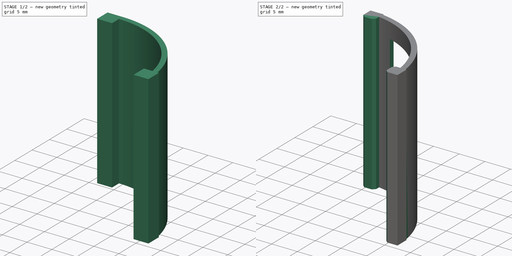
[diagram: build sequence overview — one tinted view per stage of 2, left to right]
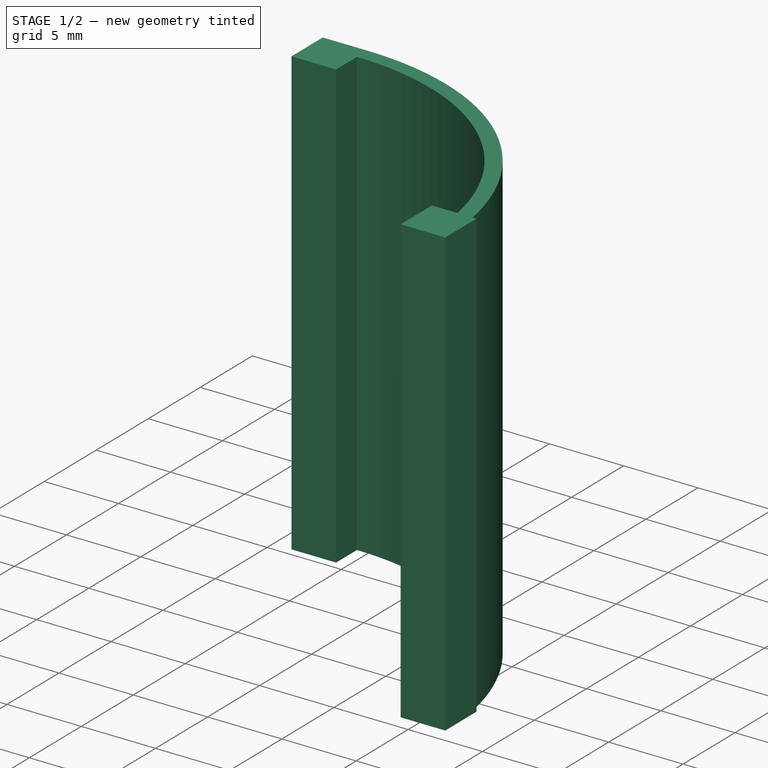
[diagram: stage 1 of 2 — iso view after this stage's code; geometry added in this stage tinted green]
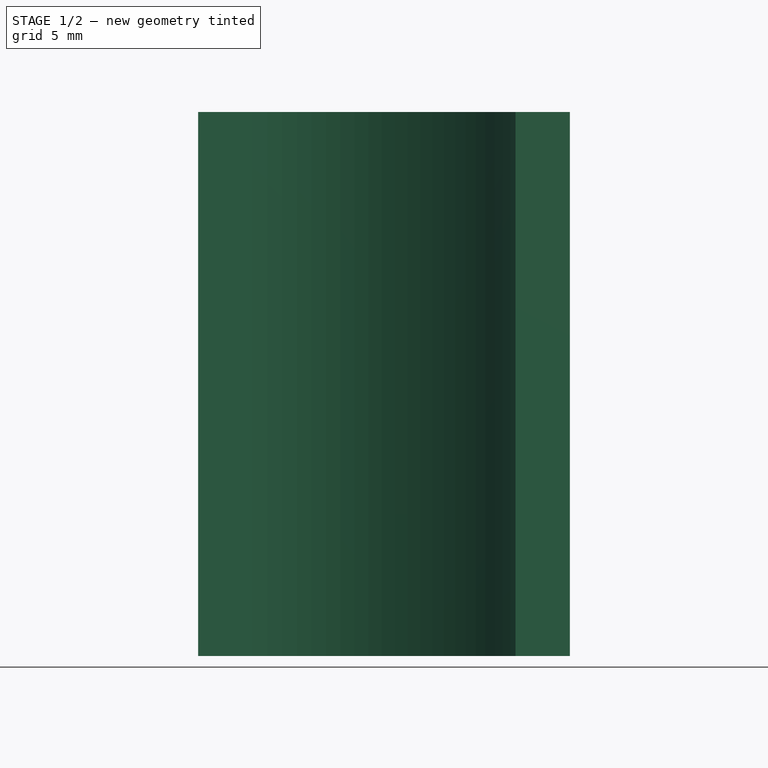
[diagram: stage 1 of 2 — front view after this stage's code; geometry added in this stage tinted green]
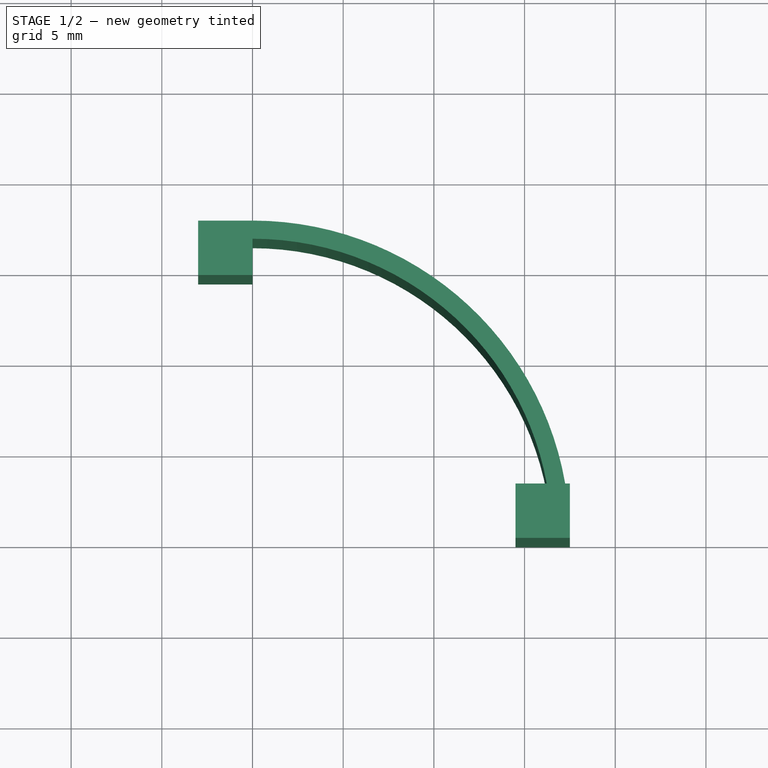
[diagram: stage 1 of 2 — top view after this stage's code; geometry added in this stage tinted green]
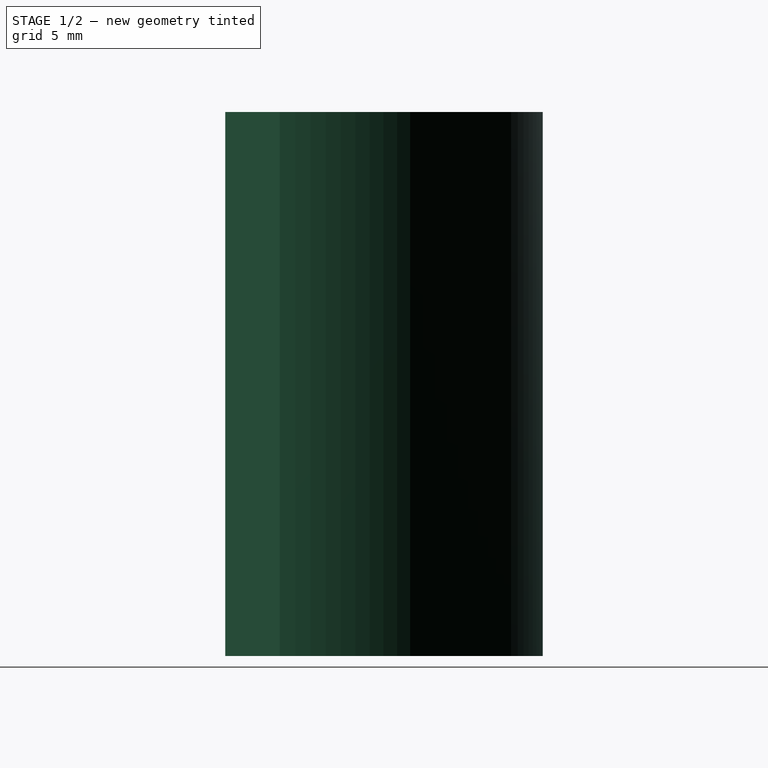
[diagram: stage 1 of 2 — right view after this stage's code; geometry added in this stage tinted green]
FCSTD DOCUMENT  (FreeCAD 1.0R39319 (Git))
Label: motor_verbindung
License: All rights reserved
LicenseURL: https://en.wikipedia.org/wiki/All_rights_reserved
objects: Sketcher::SketchObject×3, PartDesign::Pad×2, PartDesign::Chamfer×1, PartDesign::Pocket×1, PartDesign::Body×1
note: 19 computed .brp shape members not serialized (recipe doc carries the construction recipe); baked Part::Feature solids carry a one-line shape summary decoded from their .brp

FEATURE [Sketcher::SketchObject] Sketch
  ArcFitTolerance = 1e-06
  AttachmentSupport = -> [XY_Plane]
  FullyConstrained = true
  MakeInternals = false
  MapMode = 5
  sketch-geometry (4):
    g0: ArcOfCircle CenterX=0 CenterY=0 CenterZ=0 NormalX=0 NormalY=0 NormalZ=1 AngleXU=0 Radius=16.5 StartAngle=0 EndAngle=1.5708
    g1: ArcOfCircle CenterX=0 CenterY=0 CenterZ=0 NormalX=0 NormalY=0 NormalZ=1 AngleXU=0 Radius=17.5 StartAngle=0 EndAngle=1.5708
    g2: LineSegment StartX=16.5 StartY=0 StartZ=0 EndX=17.5 EndY=0 EndZ=0
    g3: LineSegment StartX=1e-15 StartY=16.5 StartZ=0 EndX=1e-15 EndY=17.5 EndZ=0
  constraints (12):
    c: Diameter(g0) = 33
    c: Coincident(g0,g-1)
    c: Diameter(g1) = 35
    c: Coincident(g1,g0)
    c: Horizontal(g2)
    c: Vertical(g3)
    c: Coincident(g0,g3)
    c: Coincident(g0,g2)
    c: Coincident(g1,g3)
    c: Coincident(g1,g2)
    c: PointOnObject(g0,g-2)
    c: PointOnObject(g0,g-1)
FEATURE [PartDesign::Pad] Pad
  Direction = (0,0,1)
  Length = 30
  Length2 = 10
  Profile = -> Sketch
  ReferenceAxis = -> Sketch [N_Axis]
  Refine = true
  Suppressed = false
  Type = 0
FEATURE [Sketcher::SketchObject] Sketch001
  ArcFitTolerance = 1e-06
  AttachmentSupport = -> [Pad]
  ExternalGeometry = -> [Pad]
  FullyConstrained = true
  MakeInternals = false
  MapMode = 5
  Placement = pos=(0,0,30) rot=(0,0,1;0rad)
  sketch-geometry (8):
    g0: LineSegment StartX=17.5 StartY=0 StartZ=0 EndX=17.5 EndY=3 EndZ=0
    g1: LineSegment StartX=17.5 StartY=3 StartZ=0 EndX=14.5 EndY=3 EndZ=0
    g2: LineSegment StartX=14.5 StartY=3 StartZ=0 EndX=14.5 EndY=0 EndZ=0
    g3: LineSegment StartX=14.5 StartY=0 StartZ=0 EndX=17.5 EndY=0 EndZ=0
    g4: LineSegment StartX=-6.7e-15 StartY=17.5 StartZ=0 EndX=-3 EndY=17.5 EndZ=0
    g5: LineSegment StartX=-3 StartY=17.5 StartZ=0 EndX=-3 EndY=14.5 EndZ=0
    g6: LineSegment StartX=-3 StartY=14.5 StartZ=0 EndX=-6.7e-15 EndY=14.5 EndZ=0
    g7: LineSegment StartX=-6.7e-15 StartY=14.5 StartZ=0 EndX=-6.7e-15 EndY=17.5 EndZ=0
  constraints (22):
    c: Coincident(g0,g1)
    c: Coincident(g1,g2)
    c: Coincident(g2,g3)
    c: Coincident(g3,g0)
    c: Vertical(g0)
    c: Vertical(g2)
    c: Horizontal(g1)
    c: Horizontal(g3)
    c: Distance(g0,g2) = 3
    c: Distance(g1,g3) = 3
    c: Coincident(g4,g5)
    c: Coincident(g5,g6)
    c: Coincident(g6,g7)
    c: Coincident(g7,g4)
    c: Horizontal(g4)
    c: Horizontal(g6)
    c: Vertical(g5)
    c: Vertical(g7)
    c: Distance(g5,g7) = 3
    c: Distance(g4,g6) = 3
    c: Coincident(g4,g-3)
    c: Coincident(g0,g-3)
FEATURE [PartDesign::Pad] Pad001
  BaseFeature = -> Pad
  Direction = (0,0,1)
  Length = 30
  Length2 = 10
  Profile = -> Sketch001
  ReferenceAxis = -> Sketch001 [N_Axis]
  Refine = true
  Reversed = true
  Suppressed = false
  Type = 0
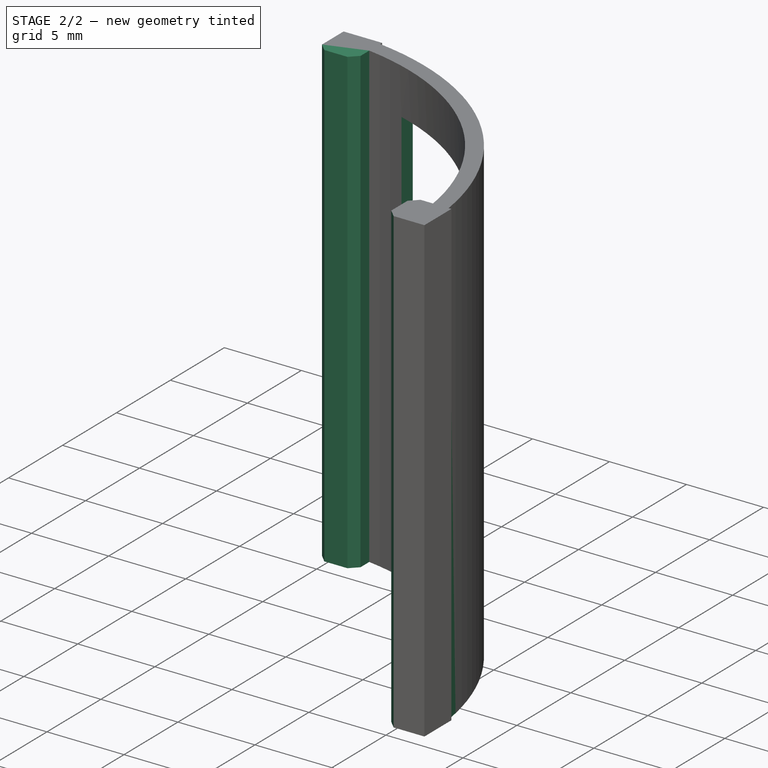
[diagram: stage 2 of 2 — iso view after this stage's code; geometry added in this stage tinted green]
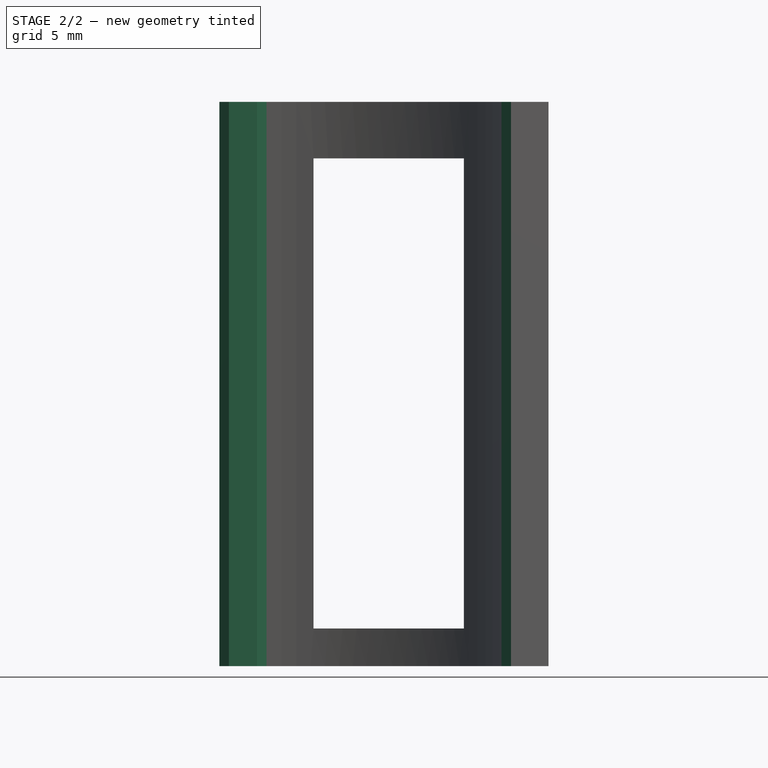
[diagram: stage 2 of 2 — front view after this stage's code; geometry added in this stage tinted green]
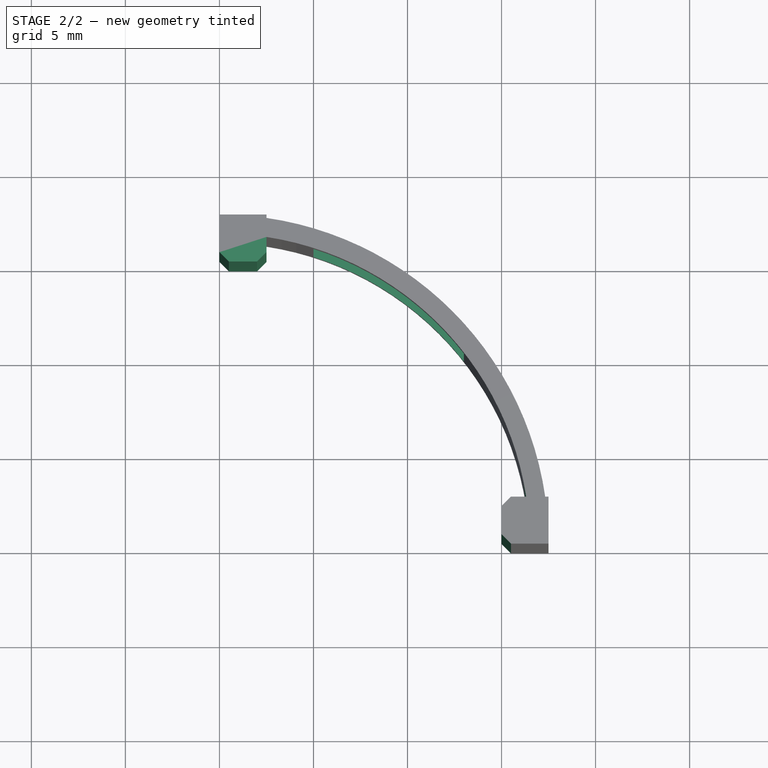
[diagram: stage 2 of 2 — top view after this stage's code; geometry added in this stage tinted green]
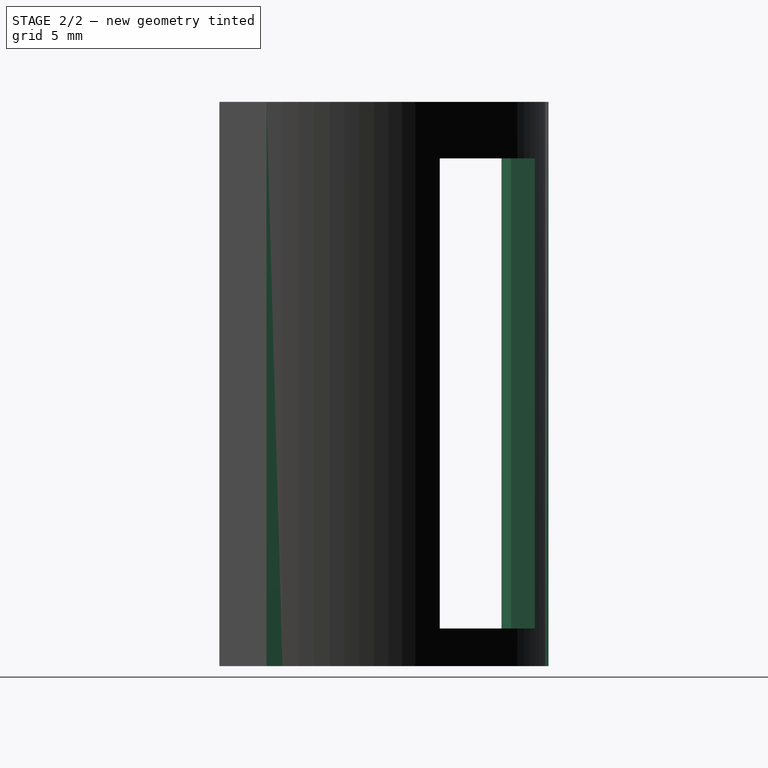
[diagram: stage 2 of 2 — right view after this stage's code; geometry added in this stage tinted green]
FEATURE [PartDesign::Chamfer] Chamfer
  Angle = 45
  Base = -> Pad001 [?Edge32,?Edge31,Edge20,Edge21]
  BaseFeature = -> Pad001
  ChamferType = 0
  FlipDirection = false
  Refine = true
  Size = 0.5
  Size2 = 1
  SupportTransform = false
  Suppressed = false
  UseAllEdges = false
FEATURE [Sketcher::SketchObject] Sketch002
  ArcFitTolerance = 1e-06
  AttachmentSupport = -> [XZ_Plane]
  ExternalGeometry = -> [Chamfer]
  FullyConstrained = true
  MakeInternals = false
  MapMode = 5
  Placement = pos=(0,0,0) rot=(1,0,0;1.5708rad)
  sketch-geometry (4):
    g0: LineSegment StartX=5 StartY=27 StartZ=0 EndX=5 EndY=2 EndZ=0
    g1: LineSegment StartX=5 StartY=2 StartZ=0 EndX=13 EndY=2 EndZ=0
    g2: LineSegment StartX=13 StartY=2 StartZ=0 EndX=13 EndY=27 EndZ=0
    g3: LineSegment StartX=13 StartY=27 StartZ=0 EndX=5 EndY=27 EndZ=0
  constraints (12):
    c: Coincident(g0,g1)
    c: Coincident(g1,g2)
    c: Coincident(g2,g3)
    c: Coincident(g3,g0)
    c: Vertical(g0)
    c: Vertical(g2)
    c: Horizontal(g1)
    c: Horizontal(g3)
    c: Distance(g0,g2) = 8
    c: Distance(g1,g3) = 25
    c: Distance(g2,g-4) = 4.5
    c: Distance(g1,g-1) = 2
FEATURE [PartDesign::Pocket] Pocket
  BaseFeature = -> Chamfer
  Direction = (0,1,-2e-16)
  Length = 5
  Length2 = 5
  Profile = -> Sketch002
  ReferenceAxis = -> Sketch002 [N_Axis]
  Refine = true
  Suppressed = false
  Type = 1
FEATURE [PartDesign::Body] Body
  AllowCompound = false
  Group = -> [Sketch,Pad,Sketch001,Pad001,Chamfer,Sketch002,Pocket]
  Origin = -> Origin
  Tip = -> Pocket
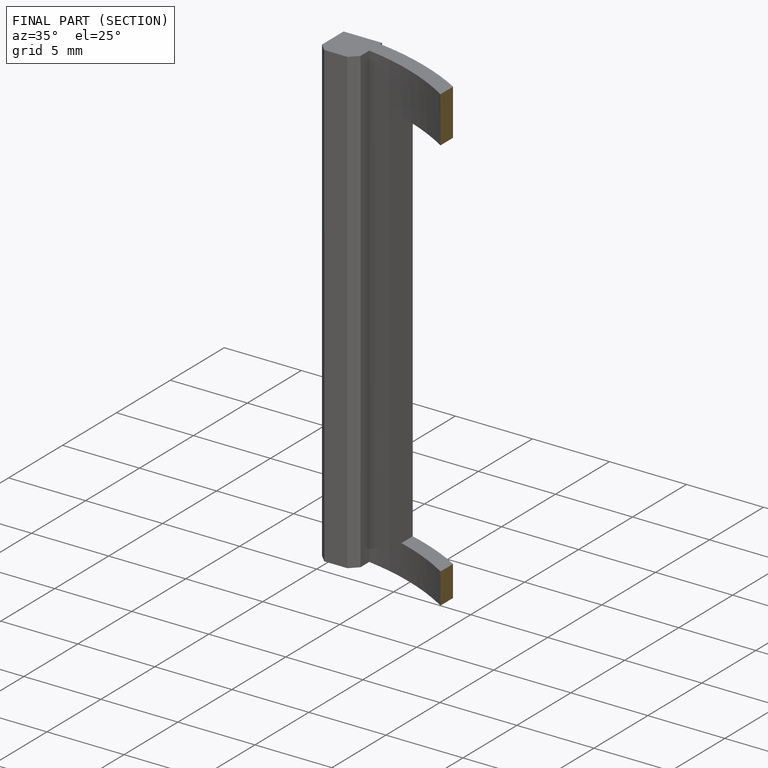
[diagram: finished part — half-section view (interior)]
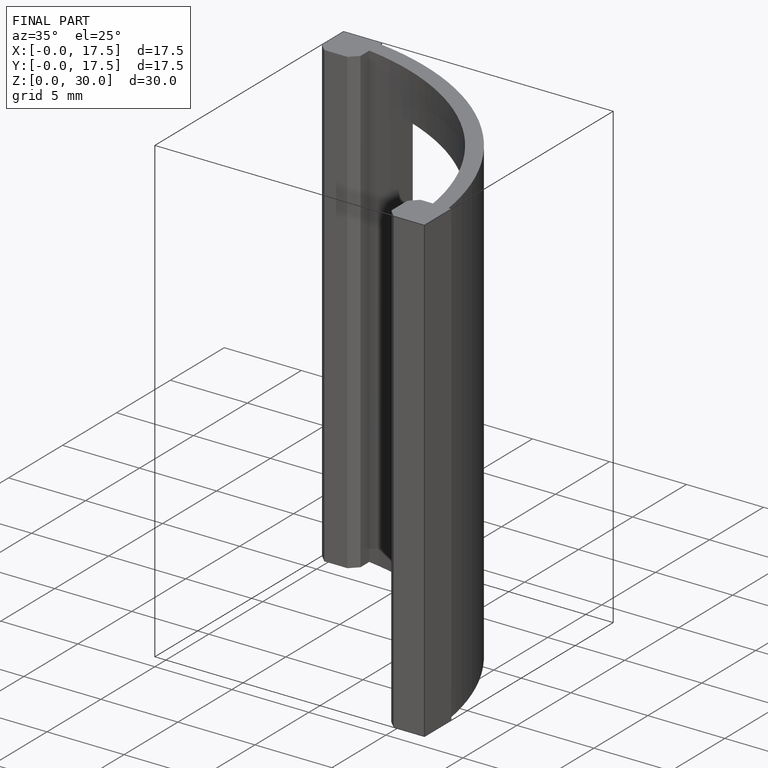
[diagram: finished part — iso view with bounding-box wireframe]
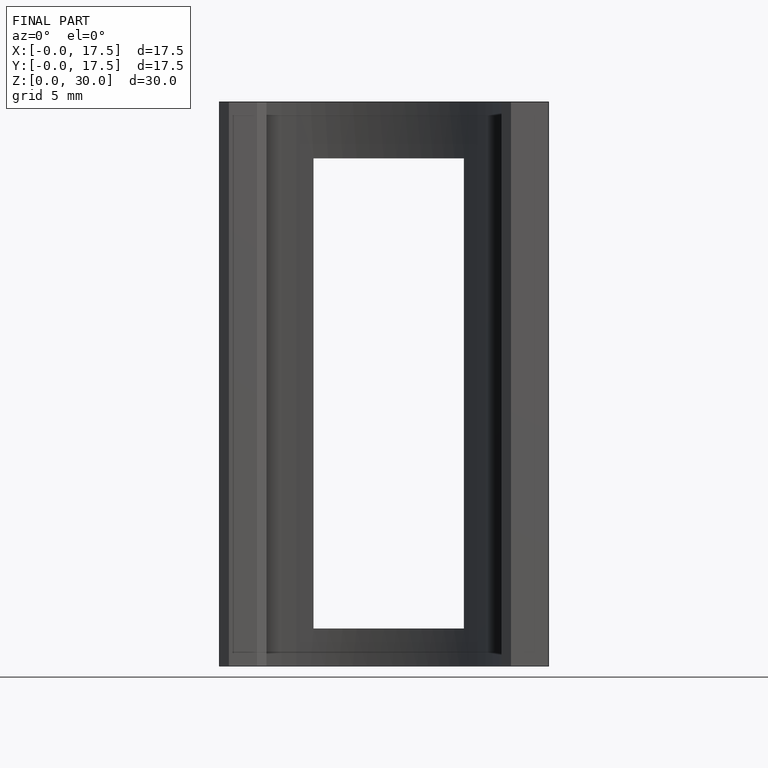
[diagram: finished part — front view with bounding-box wireframe]
